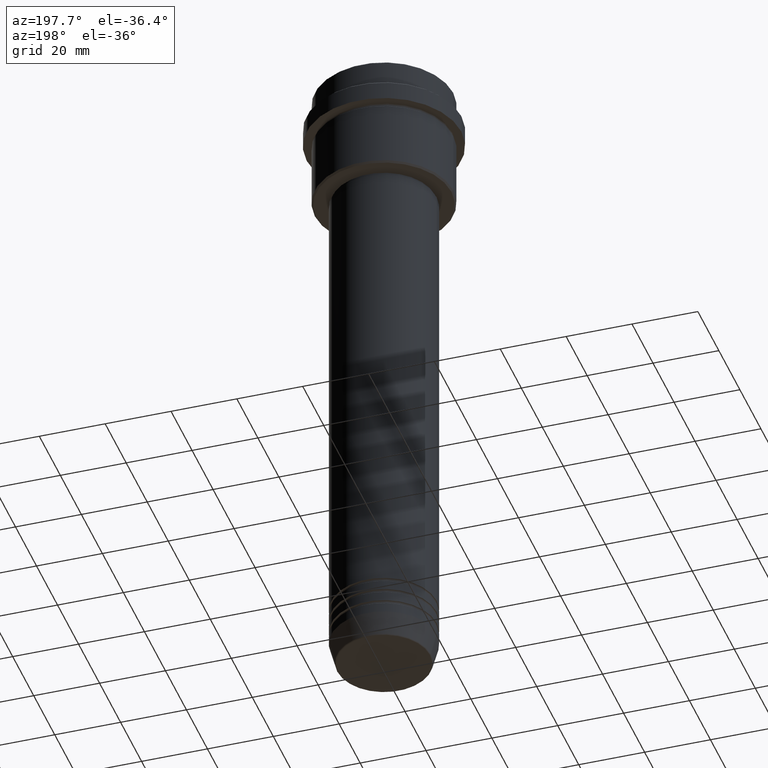
[diagram: clean part render]
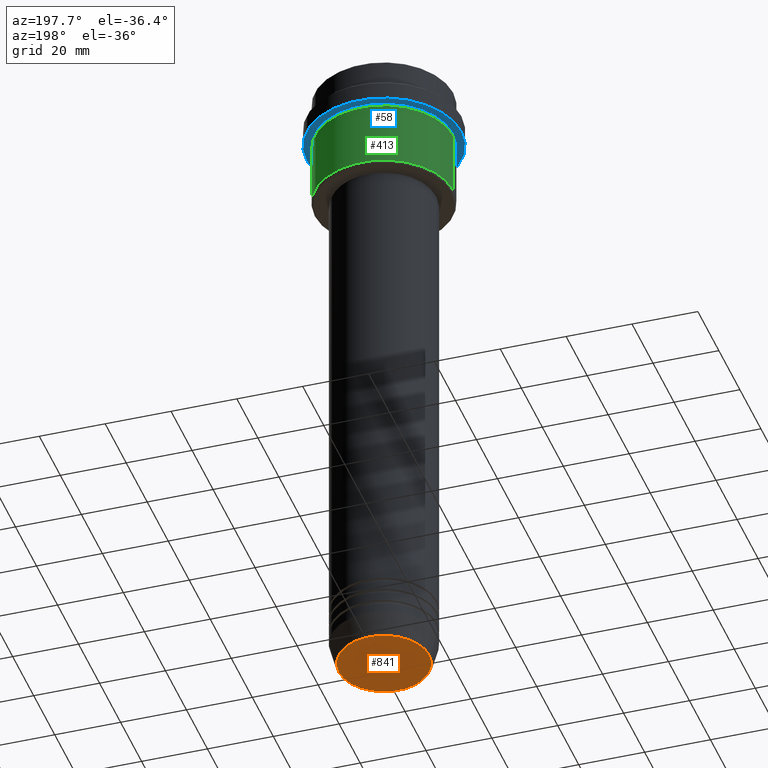
[diagram: same view with three faces highlighted in distinct colors, each labeled with its STEP entity id]
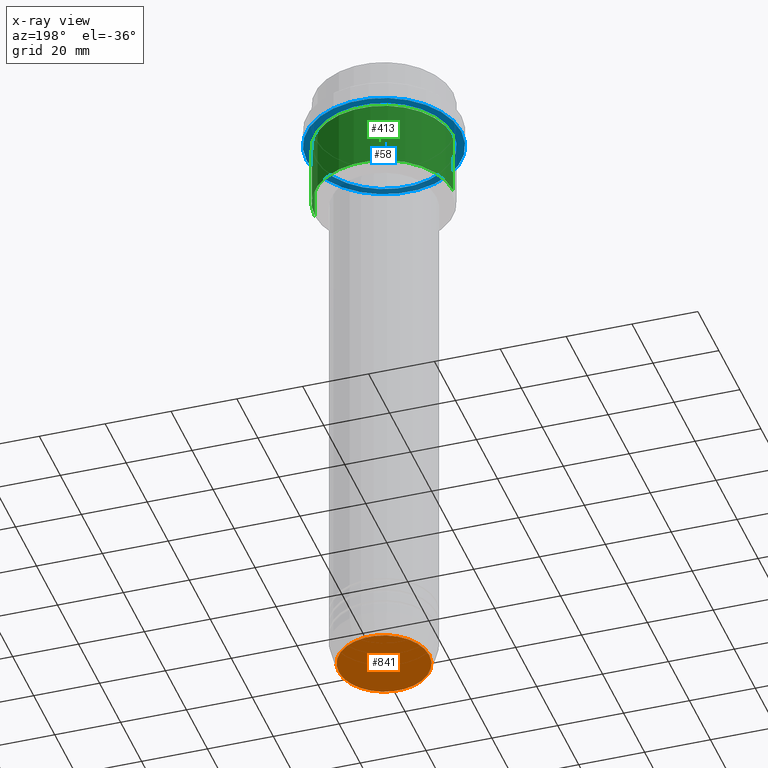
[diagram: x-ray of the same camera — body ghosted, the three highlighted faces saturated]
A machine part, auxiliary view with three faces highlighted in distinct colors.
The next image is the same camera in x-ray (body ghosted, the three faces saturated) — at least one of them is partly hidden behind the body in this view.
Their STEP definitions:

[orange] entity #841 — the highlighted planar face has unit normal (0, -0, 1).
#31 = DIRECTION ( 'NONE',  ( 0.000000000000000000, 0.000000000000000000, -1.000000000000000000 ) ) ;
#152 = FACE_OUTER_BOUND ( 'NONE', #298, .T. ) ;
#179 = ORIENTED_EDGE ( 'NONE', *, *, #367, .T. ) ;
#202 = CARTESIAN_POINT ( 'NONE',  ( 13.74069215899265828, 0.000000000000000000, -201.0000000000000000 ) ) ;
#253 = DIRECTION ( 'NONE',  ( 0.000000000000000000, -0.000000000000000000, 1.000000000000000000 ) ) ;
#291 = CIRCLE ( 'NONE', #1101, 13.74069215899265828 ) ;
#298 = EDGE_LOOP ( 'NONE', ( #1364, #179 ) ) ;
#345 = EDGE_CURVE ( 'NONE', #736, #594, #291, .T. ) ;
#356 = DIRECTION ( 'NONE',  ( 1.000000000000000000, 0.000000000000000000, 0.000000000000000000 ) ) ;
#367 = EDGE_CURVE ( 'NONE', #594, #736, #938, .T. ) ;
#462 = DIRECTION ( 'NONE',  ( 1.000000000000000000, 0.000000000000000000, 0.000000000000000000 ) ) ;
#594 = VERTEX_POINT ( 'NONE', #1409 ) ;
#732 = AXIS2_PLACEMENT_3D ( 'NONE', #1365, #253, #1130 ) ;
#736 = VERTEX_POINT ( 'NONE', #202 ) ;
#827 = PLANE ( 'NONE',  #732 ) ;
#841 = ADVANCED_FACE ( 'NONE', ( #152 ), #827, .F. ) ;
#925 = DIRECTION ( 'NONE',  ( 0.000000000000000000, 0.000000000000000000, -1.000000000000000000 ) ) ;
#938 = CIRCLE ( 'NONE', #1031, 13.74069215899265828 ) ;
#1031 = AXIS2_PLACEMENT_3D ( 'NONE', #1125, #925, #462 ) ;
#1101 = AXIS2_PLACEMENT_3D ( 'NONE', #1341, #31, #356 ) ;
#1125 = CARTESIAN_POINT ( 'NONE',  ( 0.000000000000000000, 0.000000000000000000, -201.0000000000000000 ) ) ;
#1130 = DIRECTION ( 'NONE',  ( 1.000000000000000000, 0.000000000000000000, 0.000000000000000000 ) ) ;
#1341 = CARTESIAN_POINT ( 'NONE',  ( 0.000000000000000000, 0.000000000000000000, -201.0000000000000000 ) ) ;
#1364 = ORIENTED_EDGE ( 'NONE', *, *, #345, .T. ) ;
#1365 = CARTESIAN_POINT ( 'NONE',  ( 0.000000000000000000, 0.000000000000000000, -201.0000000000000000 ) ) ;
#1409 = CARTESIAN_POINT ( 'NONE',  ( -13.74069215899265828, 1.712322416342415986E-15, -201.0000000000000000 ) ) ;

[blue] entity #58 — the highlighted planar face has unit normal (0, 0, -1).
#22 = AXIS2_PLACEMENT_3D ( 'NONE', #1207, #427, #220 ) ;
#58 = ADVANCED_FACE ( 'NONE', ( #1045, #720 ), #64, .T. ) ;
#64 = PLANE ( 'NONE',  #522 ) ;
#93 = DIRECTION ( 'NONE',  ( 1.000000000000000000, 0.000000000000000000, 0.000000000000000000 ) ) ;
#164 = DIRECTION ( 'NONE',  ( 0.000000000000000000, 0.000000000000000000, -1.000000000000000000 ) ) ;
#200 = CIRCLE ( 'NONE', #315, 23.50000000000000355 ) ;
#201 = CIRCLE ( 'NONE', #1010, 20.99999999999999289 ) ;
#220 = DIRECTION ( 'NONE',  ( 1.000000000000000000, 0.000000000000000000, 0.000000000000000000 ) ) ;
#269 = EDGE_LOOP ( 'NONE', ( #586, #877 ) ) ;
#281 = DIRECTION ( 'NONE',  ( -1.000000000000000000, 0.000000000000000000, 0.000000000000000000 ) ) ;
#296 = CARTESIAN_POINT ( 'NONE',  ( 0.000000000000000000, 23.50000000000000355, -15.00000000000000178 ) ) ;
#315 = AXIS2_PLACEMENT_3D ( 'NONE', #1075, #831, #93 ) ;
#336 = CIRCLE ( 'NONE', #22, 23.50000000000000355 ) ;
#396 = CARTESIAN_POINT ( 'NONE',  ( 0.000000000000000000, 0.000000000000000000, -15.00000000000000178 ) ) ;
#427 = DIRECTION ( 'NONE',  ( -0.000000000000000000, -0.000000000000000000, 1.000000000000000000 ) ) ;
#490 = DIRECTION ( 'NONE',  ( -1.000000000000000000, 0.000000000000000000, 0.000000000000000000 ) ) ;
#522 = AXIS2_PLACEMENT_3D ( 'NONE', #296, #164, #734 ) ;
#561 = EDGE_CURVE ( 'NONE', #772, #1319, #201, .T. ) ;
#586 = ORIENTED_EDGE ( 'NONE', *, *, #561, .T. ) ;
#603 = CARTESIAN_POINT ( 'NONE',  ( 0.000000000000000000, 0.000000000000000000, -15.00000000000000178 ) ) ;
#653 = EDGE_LOOP ( 'NONE', ( #688, #1406 ) ) ;
#688 = ORIENTED_EDGE ( 'NONE', *, *, #1413, .F. ) ;
#693 = DIRECTION ( 'NONE',  ( -0.000000000000000000, -0.000000000000000000, 1.000000000000000000 ) ) ;
#720 = FACE_OUTER_BOUND ( 'NONE', #653, .T. ) ;
#734 = DIRECTION ( 'NONE',  ( -1.000000000000000000, 0.000000000000000000, -0.000000000000000000 ) ) ;
#772 = VERTEX_POINT ( 'NONE', #794 ) ;
#794 = CARTESIAN_POINT ( 'NONE',  ( -20.99999999999999289, 0.000000000000000000, -15.00000000000000178 ) ) ;
#831 = DIRECTION ( 'NONE',  ( -0.000000000000000000, -0.000000000000000000, 1.000000000000000000 ) ) ;
#852 = CARTESIAN_POINT ( 'NONE',  ( 20.99999999999999289, 2.571758278209440872E-15, -15.00000000000000178 ) ) ;
#877 = ORIENTED_EDGE ( 'NONE', *, *, #1284, .T. ) ;
#922 = CARTESIAN_POINT ( 'NONE',  ( 23.50000000000000355, 0.000000000000000000, -15.00000000000000000 ) ) ;
#937 = AXIS2_PLACEMENT_3D ( 'NONE', #603, #693, #490 ) ;
#1010 = AXIS2_PLACEMENT_3D ( 'NONE', #396, #1266, #281 ) ;
#1045 = FACE_BOUND ( 'NONE', #269, .T. ) ;
#1071 = EDGE_CURVE ( 'NONE', #1203, #1231, #336, .T. ) ;
#1075 = CARTESIAN_POINT ( 'NONE',  ( 0.000000000000000000, 0.000000000000000000, -15.00000000000000000 ) ) ;
#1127 = CARTESIAN_POINT ( 'NONE',  ( -23.50000000000000711, 2.877919977996281109E-15, -15.00000000000000000 ) ) ;
#1203 = VERTEX_POINT ( 'NONE', #1127 ) ;
#1207 = CARTESIAN_POINT ( 'NONE',  ( 0.000000000000000000, 0.000000000000000000, -15.00000000000000000 ) ) ;
#1231 = VERTEX_POINT ( 'NONE', #922 ) ;
#1266 = DIRECTION ( 'NONE',  ( -0.000000000000000000, -0.000000000000000000, 1.000000000000000000 ) ) ;
#1284 = EDGE_CURVE ( 'NONE', #1319, #772, #1372, .T. ) ;
#1319 = VERTEX_POINT ( 'NONE', #852 ) ;
#1372 = CIRCLE ( 'NONE', #937, 20.99999999999999289 ) ;
#1406 = ORIENTED_EDGE ( 'NONE', *, *, #1071, .F. ) ;
#1413 = EDGE_CURVE ( 'NONE', #1231, #1203, #200, .T. ) ;

[green] entity #413 — the highlighted cylindrical surface (partial cylindrical patch) has radius 21 mm, axis along (-0, -0, 1).
#18 = LINE ( 'NONE', #1086, #1073 ) ;
#75 = ORIENTED_EDGE ( 'NONE', *, *, #1229, .T. ) ;
#83 = EDGE_CURVE ( 'NONE', #890, #1317, #1167, .T. ) ;
#120 = CARTESIAN_POINT ( 'NONE',  ( -21.00000000000000000, 2.571758278209441661E-15, -35.49999999999997868 ) ) ;
#172 = CARTESIAN_POINT ( 'NONE',  ( -21.00000000000000000, 2.571758278209441661E-15, -16.00000000000000355 ) ) ;
#184 = DIRECTION ( 'NONE',  ( -0.000000000000000000, -0.000000000000000000, 1.000000000000000000 ) ) ;
#186 = CARTESIAN_POINT ( 'NONE',  ( 21.00000000000000000, 0.000000000000000000, -16.00000000000000355 ) ) ;
#235 = VERTEX_POINT ( 'NONE', #120 ) ;
#246 = VECTOR ( 'NONE', #715, 1000.000000000000000 ) ;
#283 = CARTESIAN_POINT ( 'NONE',  ( -21.00000000000000000, 2.571758278209441661E-15, 0.000000000000000000 ) ) ;
#295 = CARTESIAN_POINT ( 'NONE',  ( 0.000000000000000000, 0.000000000000000000, 0.000000000000000000 ) ) ;
#362 = DIRECTION ( 'NONE',  ( -1.000000000000000000, 0.000000000000000000, 0.000000000000000000 ) ) ;
#384 = AXIS2_PLACEMENT_3D ( 'NONE', #295, #1175, #1271 ) ;
#413 = ADVANCED_FACE ( 'NONE', ( #1147 ), #820, .T. ) ;
#468 = EDGE_LOOP ( 'NONE', ( #75, #971, #1014, #993 ) ) ;
#565 = DIRECTION ( 'NONE',  ( -0.000000000000000000, -0.000000000000000000, 1.000000000000000000 ) ) ;
#702 = CIRCLE ( 'NONE', #1416, 21.00000000000000000 ) ;
#715 = DIRECTION ( 'NONE',  ( -0.000000000000000000, -0.000000000000000000, 1.000000000000000000 ) ) ;
#750 = AXIS2_PLACEMENT_3D ( 'NONE', #950, #184, #1391 ) ;
#792 = DIRECTION ( 'NONE',  ( -0.000000000000000000, -0.000000000000000000, 1.000000000000000000 ) ) ;
#820 = CYLINDRICAL_SURFACE ( 'NONE', #384, 21.00000000000000000 ) ;
#890 = VERTEX_POINT ( 'NONE', #186 ) ;
#950 = CARTESIAN_POINT ( 'NONE',  ( 0.000000000000000000, 0.000000000000000000, -16.00000000000000355 ) ) ;
#971 = ORIENTED_EDGE ( 'NONE', *, *, #1316, .T. ) ;
#993 = ORIENTED_EDGE ( 'NONE', *, *, #1106, .F. ) ;
#994 = CARTESIAN_POINT ( 'NONE',  ( 21.00000000000000000, 0.000000000000000000, -35.49999999999997868 ) ) ;
#1014 = ORIENTED_EDGE ( 'NONE', *, *, #83, .F. ) ;
#1073 = VECTOR ( 'NONE', #565, 1000.000000000000000 ) ;
#1086 = CARTESIAN_POINT ( 'NONE',  ( 21.00000000000000000, 0.000000000000000000, 0.000000000000000000 ) ) ;
#1106 = EDGE_CURVE ( 'NONE', #1157, #890, #18, .T. ) ;
#1133 = CARTESIAN_POINT ( 'NONE',  ( 0.000000000000000000, 0.000000000000000000, -35.49999999999997868 ) ) ;
#1147 = FACE_OUTER_BOUND ( 'NONE', #468, .T. ) ;
#1157 = VERTEX_POINT ( 'NONE', #994 ) ;
#1167 = CIRCLE ( 'NONE', #750, 21.00000000000000000 ) ;
#1175 = DIRECTION ( 'NONE',  ( -0.000000000000000000, -0.000000000000000000, 1.000000000000000000 ) ) ;
#1229 = EDGE_CURVE ( 'NONE', #1157, #235, #702, .T. ) ;
#1271 = DIRECTION ( 'NONE',  ( 1.000000000000000000, 0.000000000000000000, 0.000000000000000000 ) ) ;
#1274 = LINE ( 'NONE', #283, #246 ) ;
#1316 = EDGE_CURVE ( 'NONE', #235, #1317, #1274, .T. ) ;
#1317 = VERTEX_POINT ( 'NONE', #172 ) ;
#1391 = DIRECTION ( 'NONE',  ( 1.000000000000000000, 0.000000000000000000, 0.000000000000000000 ) ) ;
#1416 = AXIS2_PLACEMENT_3D ( 'NONE', #1133, #792, #362 ) ;